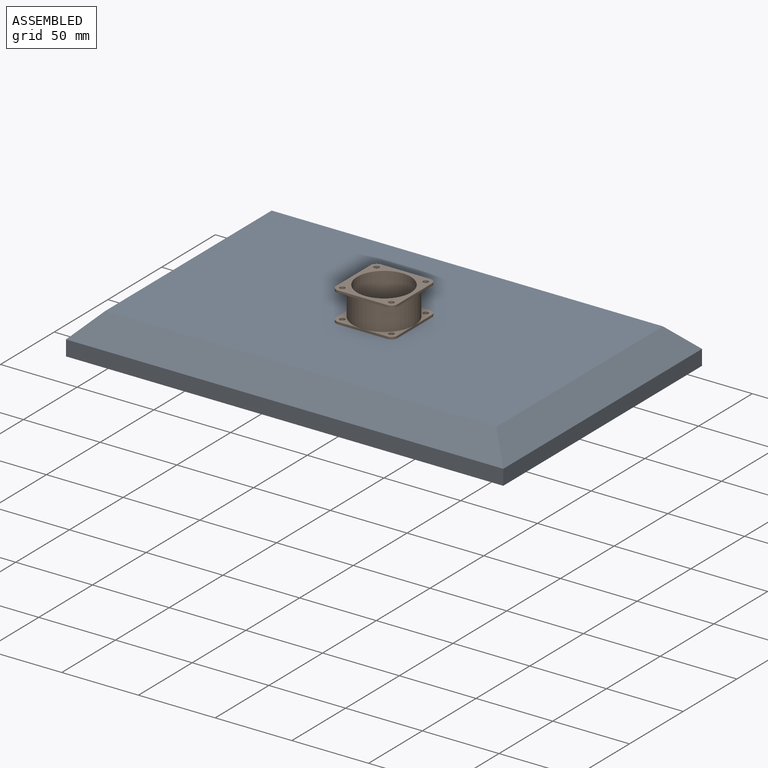
[diagram: assembled view]
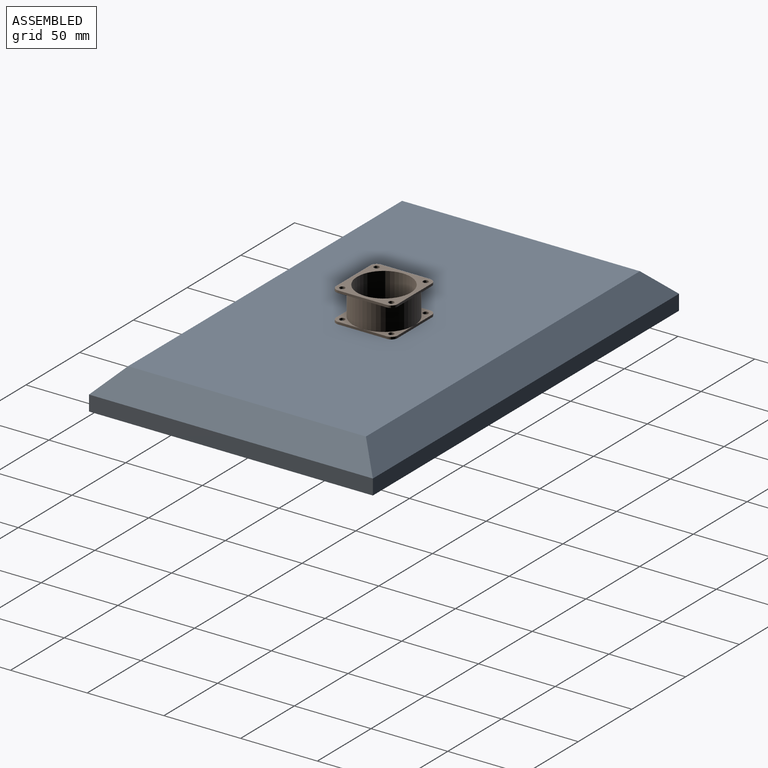
[diagram: assembled view, second angle]
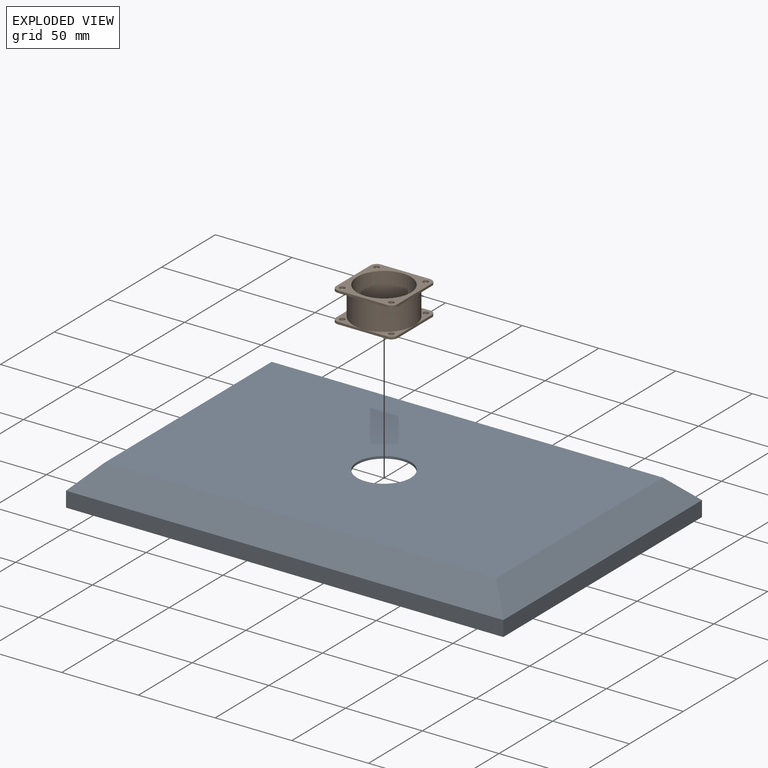
[diagram: exploded view]
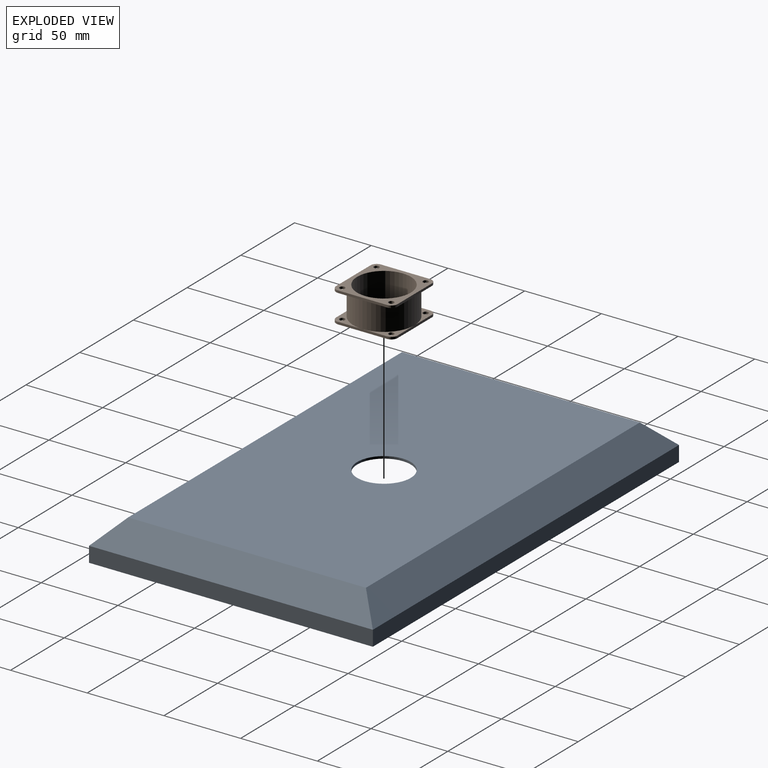
[diagram: exploded view, second angle]
ASSEMBLY  parts=2 mates=2
PART A: 20 faces, bbox 285x185x25 mm
  f0: plane 185x10mm, normal (1,0,0), area 1850mm2, adj f1,f4,f6,f8
  f1: plane 285x10mm, normal (0,1,0), area 2850mm2, adj f0,f2,f6,f7
  f2: plane 185x10mm, normal (-1,0,0), area 1850mm2, adj f1,f4,f6,f9
  f3: cylinder r=17.5mm len=35mm, axis (0,0,-1), area 164.9mm2, adj f5,f15
  f4: plane 285x10mm, normal (0,-1,0), area 2850mm2, adj f0,f2,f6,f10
  f5: plane 255x155mm, normal (0,0,1), area 38562.9mm2, adj f3,f7,f8,f9,f10
  f6: plane 285x185mm, normal (0,0,-1), area 1401mm2, adj f0,f1,f2,f4,f11,f12,f13,f14
  f7: plane 285x15mm, normal (0,0.71,0.71), area 5727.6mm2, adj f1,f5,f8,f9
  f8: plane 185x15mm, normal (0.71,0,0.71), area 3606.2mm2, adj f0,f5,f7,f10
  f9: plane 185x15mm, normal (-0.71,0,0.71), area 3606.2mm2, adj f2,f5,f7,f10
  f10: plane 285x15mm, normal (0,-0.71,0.71), area 5727.6mm2, adj f4,f5,f8,f9
  f11: plane 182x9.38mm, normal (-1,0,0), area 1706.9mm2, adj f6,f12,f14,f17
  f12: plane 282x9.38mm, normal (0,-1,0), area 2644.8mm2, adj f6,f11,f13,f16
  f13: plane 182x9.38mm, normal (1,0,0), area 1706.9mm2, adj f6,f12,f14,f18
  f14: plane 282x9.38mm, normal (0,1,0), area 2644.8mm2, adj f6,f11,f13,f19
  f15: plane 253.76x153.76mm, normal (0,0,-1), area 38054.9mm2, adj f3,f16,f17,f18,f19
  f16: plane 282x14.12mm, normal (0,-0.71,-0.71), area 5349.7mm2, adj f12,f15,f17,f18
  f17: plane 182x14.12mm, normal (-0.71,0,-0.71), area 3352.6mm2, adj f11,f15,f16,f19
  f18: plane 182x14.12mm, normal (0.71,0,-0.71), area 3352.6mm2, adj f13,f15,f16,f19
  f19: plane 282x14.12mm, normal (0,0.71,-0.71), area 5349.7mm2, adj f14,f15,f17,f18
PART B: 36 faces, bbox 40x40x20 mm
  f0: plane 32x1.5mm, normal (-1,0,0), area 48mm2, adj f4,f6,f12,f15,f16
  f1: plane 32x1.5mm, normal (1,0,0), area 48mm2, adj f5,f7,f12,f14,f20
  f2: plane 32x1.5mm, normal (0,-1,0), area 48mm2, adj f6,f7,f12,f15,f20
  f3: plane 32x1.5mm, normal (0,1,0), area 48mm2, adj f4,f5,f12,f14,f16
  f4: cylinder r=4mm len=4mm, axis (0,0,-1), area 9.4mm2, adj f0,f3,f12,f16
  f5: cylinder r=4mm len=4mm, axis (0,0,1), area 9.4mm2, adj f1,f3,f12,f14
  f6: cylinder r=4mm len=4mm, axis (0,0,1), area 9.4mm2, adj f0,f2,f12,f15
  f7: cylinder r=4mm len=4mm, axis (0,0,-1), area 9.4mm2, adj f1,f2,f12,f20
  f8: cylinder r=1.75mm len=3.5mm, axis (0,0,-1), area 16.5mm2, adj f12,f15
  f9: cylinder r=1.75mm len=3.5mm, axis (0,0,-1), area 16.5mm2, adj f12,f20
  f10: cylinder r=1.75mm len=3.5mm, axis (0,0,-1), area 16.5mm2, adj f12,f14
  f11: cylinder r=1.75mm len=3.5mm, axis (0,0,-1), area 16.5mm2, adj f12,f16
  f12: plane 40x40mm, normal (0,0,1), area 585.7mm2, adj f0,f1,f2,f3,f4,f5,f6,f7
  f13: cylinder r=20mm len=40mm, axis (0,0,1), area 2136.3mm2, adj f14,f15,f16,f17,f18,f19,f20,f21
  f14: plane 20x20mm, normal (0,0,-1), area 72.8mm2, adj f1,f3,f5,f10,f13
  f15: plane 20x20mm, normal (0,0,-1), area 72.8mm2, adj f0,f2,f6,f8,f13
  f16: plane 20x20mm, normal (0,0,-1), area 72.8mm2, adj f0,f3,f4,f11,f13
  f17: plane 20x20mm, normal (0,0,1), area 72.8mm2, adj f13,f22,f24,f28,f32
  f18: plane 20x20mm, normal (0,0,1), area 72.8mm2, adj f13,f26,f27,f29,f30
  f19: plane 20x20mm, normal (0,0,1), area 72.8mm2, adj f13,f23,f24,f29,f34
  f20: plane 20x20mm, normal (0,0,-1), area 72.8mm2, adj f1,f2,f7,f9,f13
  f21: plane 20x20mm, normal (0,0,1), area 72.8mm2, adj f13,f25,f27,f28,f31
  f22: cylinder r=4mm len=4mm, axis (0,0,1), area 9.4mm2, adj f17,f24,f28,f33
  f23: cylinder r=4mm len=4mm, axis (0,0,-1), area 9.4mm2, adj f19,f24,f29,f33
  f24: plane 32x1.5mm, normal (0,1,0), area 48mm2, adj f17,f19,f22,f23,f33
  f25: cylinder r=4mm len=4mm, axis (0,0,-1), area 9.4mm2, adj f21,f27,f28,f33
  f26: cylinder r=4mm len=4mm, axis (0,0,1), area 9.4mm2, adj f18,f27,f29,f33
  f27: plane 32x1.5mm, normal (0,-1,0), area 48mm2, adj f18,f21,f25,f26,f33
  f28: plane 32x1.5mm, normal (1,0,0), area 48mm2, adj f17,f21,f22,f25,f33
  f29: plane 32x1.5mm, normal (-1,0,0), area 48mm2, adj f18,f19,f23,f26,f33
  f30: cylinder r=1.75mm len=3.5mm, axis (0,0,-1), area 16.5mm2, adj f18,f33
  f31: cylinder r=1.75mm len=3.5mm, axis (0,0,-1), area 16.5mm2, adj f21,f33
  f32: cylinder r=1.75mm len=3.5mm, axis (0,0,-1), area 16.5mm2, adj f17,f33
  f33: plane 40x40mm, normal (0,0,-1), area 585.7mm2, adj f22,f23,f24,f25,f26,f27,f28,f29
  f34: cylinder r=1.75mm len=3.5mm, axis (0,0,-1), area 16.5mm2, adj f19,f33
  f35: cylinder r=17.5mm len=35mm, axis (0,0,-1), area 2199.1mm2, adj f12,f33
PLACE A t=(-226.21,-87.19,22.47)mm
PLACE B t=(-368.71,5.31,57.47)mm
MATE cylindrical B.f13 <-> A.f3  axis (0,0,-1) through (-368.71,5.31,57.47)mm
MATE planar A.f3 <-> B.f13  axis (0,0,1) through (-368.71,5.31,47.47)mm
